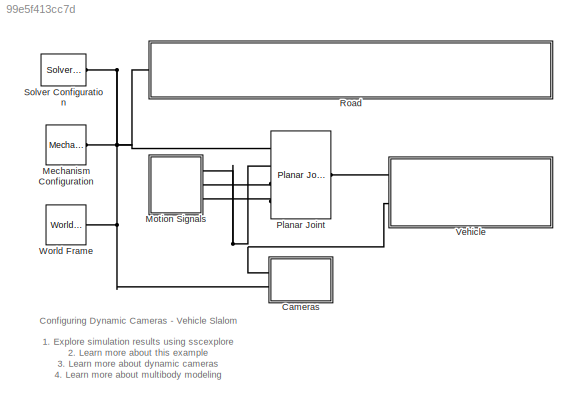
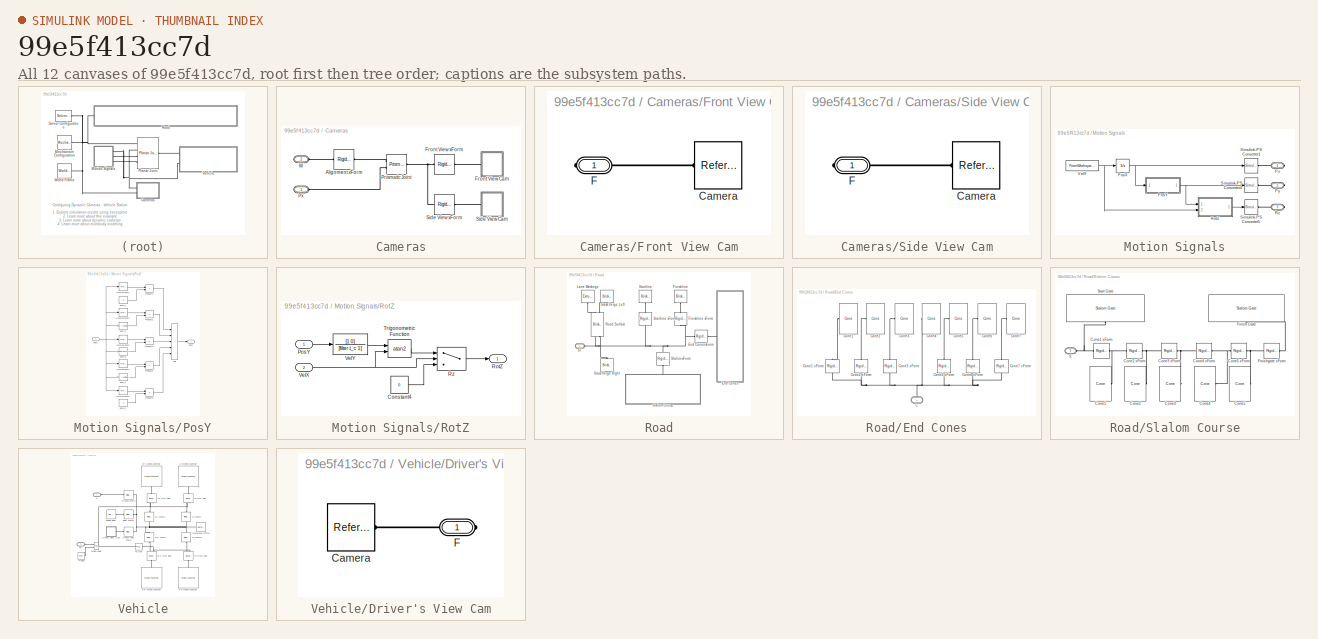
[diagram: thumbnail index - all 12 canvases of the model, root first then tree order]
MODEL slx_99e5f413cc7d
KIND model
CONFIG AbsTol = auto
CONFIG EnableMultiTasking = on
CONFIG FixedStep = auto
CONFIG MaxStep = 0.01
CONFIG MinStep = auto
CONFIG RelTol = 1e-3
CONFIG SampleTimeConstraint = Unconstrained
CONFIG Solver = VariableStepAuto
CONFIG SolverName = VariableStepAuto
CONFIG StartTime = 0.0
CONFIG StopTime = 25
WORKSPACE source: external: MATLAB File  (data not in archive)
BLOCK [SubSystem] Cameras
  Ports = [0, 0, 0, 0, 0, 2]
  RequestExecContextInheritance = off
BLOCK [Reference] Cameras/Alignment xForm  REF=sm_lib/Frames and
Transforms/Rigid
Transform
  Ports = [0, 0, 0, 0, 0, 1, 1]
  SourceBlock = sm_lib/Frames and\nTransforms/Rigid\nTransform
  SourceProductBaseCode = MS
  SourceType = Rigid\nTransform
BLOCK [SubSystem] Cameras/Front View Cam
  Ports = [0, 0, 0, 0, 0, 0, 1]
  RequestExecContextInheritance = off
BLOCK [Reference] Cameras/Front View Cam/Camera  REF=sm_lib/Frames and
Transforms/Reference
Frame
  Ports = [0, 0, 0, 0, 0, 0, 1]
  SourceBlock = sm_lib/Frames and\nTransforms/Reference\nFrame
  SourceProductBaseCode = MS
  SourceType = Reference\nFrame
BLOCK [PMIOPort] Cameras/Front View Cam/F
  Side = Right
BLOCK [Reference] Cameras/Front View xForm  REF=sm_lib/Frames and
Transforms/Rigid
Transform
  Ports = [0, 0, 0, 0, 0, 1, 1]
  SourceBlock = sm_lib/Frames and\nTransforms/Rigid\nTransform
  SourceProductBaseCode = MS
  SourceType = Rigid\nTransform
BLOCK [Reference] Cameras/Prismatic Joint  REF=sm_lib/Joints/Prismatic
Joint
  Ports = [0, 0, 0, 0, 0, 2, 1]
  SourceBlock = sm_lib/Joints/Prismatic\nJoint
  SourceProductBaseCode = MS
  SourceType = Prismatic\nJoint
BLOCK [PMIOPort] Cameras/Px
  Side = Left
BLOCK [SubSystem] Cameras/Side View Cam
  Ports = [0, 0, 0, 0, 0, 0, 1]
  RequestExecContextInheritance = off
BLOCK [Reference] Cameras/Side View Cam/Camera  REF=sm_lib/Frames and
Transforms/Reference
Frame
  Ports = [0, 0, 0, 0, 0, 0, 1]
  SourceBlock = sm_lib/Frames and\nTransforms/Reference\nFrame
  SourceProductBaseCode = MS
  SourceType = Reference\nFrame
BLOCK [PMIOPort] Cameras/Side View Cam/F
  Side = Right
BLOCK [Reference] Cameras/Side View xForm  REF=sm_lib/Frames and
Transforms/Rigid
Transform
  Ports = [0, 0, 0, 0, 0, 1, 1]
  SourceBlock = sm_lib/Frames and\nTransforms/Rigid\nTransform
  SourceProductBaseCode = MS
  SourceType = Rigid\nTransform
BLOCK [PMIOPort] Cameras/W
  Port = 2
  Side = Left
BLOCK [Reference] Mechanism Configuration  REF=sm_lib/Utilities/Mechanism
Configuration
  Ports = [0, 0, 0, 0, 0, 0, 1]
  SourceBlock = sm_lib/Utilities/Mechanism\nConfiguration
  SourceProductBaseCode = MS
  SourceType = Mechanism\nConfiguration
BLOCK [SubSystem] Motion Signals
  Ports = [0, 0, 0, 0, 0, 0, 3]
  RequestExecContextInheritance = off
BLOCK [Integrator] Motion Signals/PosX
  InitialCondition = vehicle.posX_0
  Ports = [1, 1]
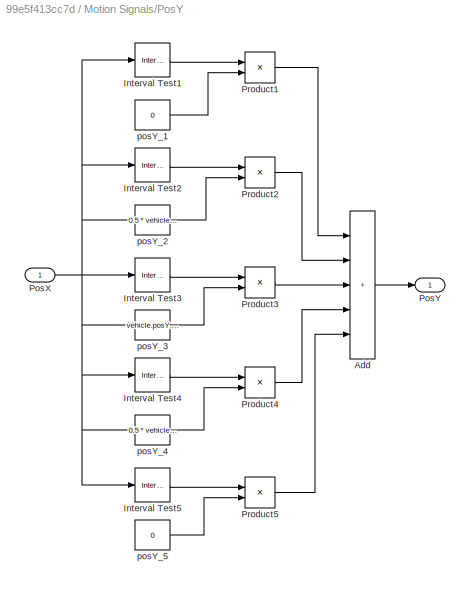
BLOCK [SubSystem] Motion Signals/PosY
  Ports = [1, 1]
  RequestExecContextInheritance = off
BLOCK [Sum] Motion Signals/PosY/Add
  IconShape = rectangular
  Inputs = +++++
  Ports = [5, 1]
BLOCK [Reference] Motion Signals/PosY/Interval Test1  REF=simulink/Logic and Bit
Operations/Interval Test
  Ports = [1, 1]
  SourceBlock = simulink/Logic and Bit\nOperations/Interval Test
  SourceProductBaseCode = SL
  SourceType = Interval Test
BLOCK [Reference] Motion Signals/PosY/Interval Test2  REF=simulink/Logic and Bit
Operations/Interval Test
  Ports = [1, 1]
  SourceBlock = simulink/Logic and Bit\nOperations/Interval Test
  SourceProductBaseCode = SL
  SourceType = Interval Test
BLOCK [Reference] Motion Signals/PosY/Interval Test3  REF=simulink/Logic and Bit
Operations/Interval Test
  Ports = [1, 1]
  SourceBlock = simulink/Logic and Bit\nOperations/Interval Test
  SourceProductBaseCode = SL
  SourceType = Interval Test
BLOCK [Reference] Motion Signals/PosY/Interval Test4  REF=simulink/Logic and Bit
Operations/Interval Test
  Ports = [1, 1]
  SourceBlock = simulink/Logic and Bit\nOperations/Interval Test
  SourceProductBaseCode = SL
  SourceType = Interval Test
BLOCK [Reference] Motion Signals/PosY/Interval Test5  REF=simulink/Logic and Bit
Operations/Interval Test
  Ports = [1, 1]
  SourceBlock = simulink/Logic and Bit\nOperations/Interval Test
  SourceProductBaseCode = SL
  SourceType = Interval Test
BLOCK [Inport] Motion Signals/PosY/PosX
BLOCK [Outport] Motion Signals/PosY/PosY
  VectorParamsAs1DForOutWhenUnconnected = off
BLOCK [Product] Motion Signals/PosY/Product1
  Ports = [2, 1]
BLOCK [Product] Motion Signals/PosY/Product2
  Ports = [2, 1]
BLOCK [Product] Motion Signals/PosY/Product3
  Ports = [2, 1]
BLOCK [Product] Motion Signals/PosY/Product4
  Ports = [2, 1]
BLOCK [Product] Motion Signals/PosY/Product5
  Ports = [2, 1]
BLOCK [Constant] Motion Signals/PosY/posY_1
  Value = 0
BLOCK [Fcn] Motion Signals/PosY/posY_2
  Expr = 0.5 * vehicle.posY.A * (1 - cos(pi / slalom.firstConeFromStartgate * (u - slalom.startgate_offset)))
BLOCK [Fcn] Motion Signals/PosY/posY_3
  Expr = vehicle.posY.A * cos(pi / slalom.coneSpacing * (u - slalom.firstCone_offset))
BLOCK [Fcn] Motion Signals/PosY/posY_4
  Expr = 0.5 * vehicle.posY.A * (1 + cos(pi / (slalom.finishgateFromEndCone) * (u - slalom.endCone_offset)))
BLOCK [Constant] Motion Signals/PosY/posY_5
  Value = 0
BLOCK [PMIOPort] Motion Signals/Px
  Side = Right
BLOCK [PMIOPort] Motion Signals/Py
  Port = 2
  Side = Right
BLOCK [SubSystem] Motion Signals/RotZ
  Ports = [2, 1]
  RequestExecContextInheritance = off
BLOCK [Constant] Motion Signals/RotZ/Constant4
  Value = 0
BLOCK [Inport] Motion Signals/RotZ/PosY
BLOCK [Outport] Motion Signals/RotZ/RotZ
  VectorParamsAs1DForOutWhenUnconnected = off
BLOCK [Switch] Motion Signals/RotZ/Rz
  Criteria = u2 > Threshold
  InputSameDT = off
  SaturateOnIntegerOverflow = off
BLOCK [Trigonometry] Motion Signals/RotZ/Trigonometric Function
  Operator = atan2
  Ports = [2, 1]
BLOCK [Inport] Motion Signals/RotZ/VelX
  Port = 2
BLOCK [TransferFcn] Motion Signals/RotZ/VelY
  Denominator = [filter.t_c 1]
  Numerator = [1 0]
BLOCK [PMIOPort] Motion Signals/Rz
  Port = 3
  Side = Right
BLOCK [Reference] Motion Signals/Simulink-PS Converter1  REF=nesl_utility/Simulink-PS
Converter
  Ports = [1, 0, 0, 0, 0, 0, 1]
  SourceBlock = nesl_utility/Simulink-PS\nConverter
  SourceProductBaseCode = SS
  SourceType = Simulink-PS\nConverter
BLOCK [Reference] Motion Signals/Simulink-PS Converter4  REF=nesl_utility/Simulink-PS
Converter
  Ports = [1, 0, 0, 0, 0, 0, 1]
  SourceBlock = nesl_utility/Simulink-PS\nConverter
  SourceProductBaseCode = SS
  SourceType = Simulink-PS\nConverter
BLOCK [Reference] Motion Signals/Simulink-PS Converter5  REF=nesl_utility/Simulink-PS
Converter
  Ports = [1, 0, 0, 0, 0, 0, 1]
  SourceBlock = nesl_utility/Simulink-PS\nConverter
  SourceProductBaseCode = SS
  SourceType = Simulink-PS\nConverter
BLOCK [FromWorkspace] Motion Signals/VelX
  OutputAfterFinalValue = Holding final value
  VariableName = vehicle.velX
BLOCK [Reference] Planar Joint  REF=sm_lib/Joints/Planar Joint
  Ports = [0, 0, 0, 0, 0, 4, 1]
  SourceBlock = sm_lib/Joints/Planar Joint
  SourceProductBaseCode = MS
  SourceType = Planar Joint
BLOCK [SubSystem] Road
  Ports = [0, 0, 0, 0, 0, 1]
  RequestExecContextInheritance = off
BLOCK [SubSystem] Road/End Cones
  Ports = [0, 0, 0, 0, 0, 1]
  RequestExecContextInheritance = off
BLOCK [Reference] Road/End Cones xForm  REF=sm_lib/Frames and
Transforms/Rigid
Transform
  Ports = [0, 0, 0, 0, 0, 1, 1]
  SourceBlock = sm_lib/Frames and\nTransforms/Rigid\nTransform
  SourceProductBaseCode = MS
  SourceType = Rigid\nTransform
BLOCK [PMIOPort] Road/End Cones/C
  NameLocation = right
  Side = Left
BLOCK [Reference] Road/End Cones/Cone1  REF=sm_vehicle_slalom_lib/Cone  (lib defined in slx_7d64bd272453)
  Ports = [0, 0, 0, 0, 0, 1]
  SourceBlock = sm_vehicle_slalom_lib/Cone
  SourceProductBaseCode = MS
  SourceType = Cone
BLOCK [Reference] Road/End Cones/Cone1 xForm  REF=sm_lib/Frames and
Transforms/Rigid
Transform
  NameLocation = right
  Ports = [0, 0, 0, 0, 0, 1, 1]
  SourceBlock = sm_lib/Frames and\nTransforms/Rigid\nTransform
  SourceProductBaseCode = MS
  SourceType = Rigid\nTransform
BLOCK [Reference] Road/End Cones/Cone2  REF=sm_vehicle_slalom_lib/Cone  (lib defined in slx_7d64bd272453)
  Ports = [0, 0, 0, 0, 0, 1]
  SourceBlock = sm_vehicle_slalom_lib/Cone
  SourceProductBaseCode = MS
  SourceType = Cone
BLOCK [Reference] Road/End Cones/Cone2 xForm  REF=sm_lib/Frames and
Transforms/Rigid
Transform
  NameLocation = right
  Ports = [0, 0, 0, 0, 0, 1, 1]
  SourceBlock = sm_lib/Frames and\nTransforms/Rigid\nTransform
  SourceProductBaseCode = MS
  SourceType = Rigid\nTransform
BLOCK [Reference] Road/End Cones/Cone3  REF=sm_vehicle_slalom_lib/Cone  (lib defined in slx_7d64bd272453)
  Ports = [0, 0, 0, 0, 0, 1]
  SourceBlock = sm_vehicle_slalom_lib/Cone
  SourceProductBaseCode = MS
  SourceType = Cone
BLOCK [Reference] Road/End Cones/Cone3 xForm  REF=sm_lib/Frames and
Transforms/Rigid
Transform
  NameLocation = right
  Ports = [0, 0, 0, 0, 0, 1, 1]
  SourceBlock = sm_lib/Frames and\nTransforms/Rigid\nTransform
  SourceProductBaseCode = MS
  SourceType = Rigid\nTransform
BLOCK [Reference] Road/End Cones/Cone4  REF=sm_vehicle_slalom_lib/Cone  (lib defined in slx_7d64bd272453)
  Ports = [0, 0, 0, 0, 0, 1]
  SourceBlock = sm_vehicle_slalom_lib/Cone
  SourceProductBaseCode = MS
  SourceType = Cone
BLOCK [Reference] Road/End Cones/Cone5  REF=sm_vehicle_slalom_lib/Cone  (lib defined in slx_7d64bd272453)
  Ports = [0, 0, 0, 0, 0, 1]
  SourceBlock = sm_vehicle_slalom_lib/Cone
  SourceProductBaseCode = MS
  SourceType = Cone
BLOCK [Reference] Road/End Cones/Cone5 xForm  REF=sm_lib/Frames and
Transforms/Rigid
Transform
  NameLocation = left
  Ports = [0, 0, 0, 0, 0, 1, 1]
  SourceBlock = sm_lib/Frames and\nTransforms/Rigid\nTransform
  SourceProductBaseCode = MS
  SourceType = Rigid\nTransform
BLOCK [Reference] Road/End Cones/Cone6  REF=sm_vehicle_slalom_lib/Cone  (lib defined in slx_7d64bd272453)
  Ports = [0, 0, 0, 0, 0, 1]
  SourceBlock = sm_vehicle_slalom_lib/Cone
  SourceProductBaseCode = MS
  SourceType = Cone
BLOCK [Reference] Road/End Cones/Cone6 xForm  REF=sm_lib/Frames and
Transforms/Rigid
Transform
  NameLocation = left
  Ports = [0, 0, 0, 0, 0, 1, 1]
  SourceBlock = sm_lib/Frames and\nTransforms/Rigid\nTransform
  SourceProductBaseCode = MS
  SourceType = Rigid\nTransform
BLOCK [Reference] Road/End Cones/Cone7  REF=sm_vehicle_slalom_lib/Cone  (lib defined in slx_7d64bd272453)
  Ports = [0, 0, 0, 0, 0, 1]
  SourceBlock = sm_vehicle_slalom_lib/Cone
  SourceProductBaseCode = MS
  SourceType = Cone
BLOCK [Reference] Road/End Cones/Cone7 xForm  REF=sm_lib/Frames and
Transforms/Rigid
Transform
  NameLocation = left
  Ports = [0, 0, 0, 0, 0, 1, 1]
  SourceBlock = sm_lib/Frames and\nTransforms/Rigid\nTransform
  SourceProductBaseCode = MS
  SourceType = Rigid\nTransform
BLOCK [Reference] Road/Finishline  REF=sm_lib/Body Elements/Brick Solid
  NameLocation = right
  Ports = [0, 0, 0, 0, 0, 0, 1]
  SourceBlock = sm_lib/Body Elements/Brick Solid
  SourceProductBaseCode = MS
  SourceType = Brick Solid
BLOCK [Reference] Road/Finishline xForm  REF=sm_lib/Frames and
Transforms/Rigid
Transform
  NameLocation = right
  Ports = [0, 0, 0, 0, 0, 1, 1]
  SourceBlock = sm_lib/Frames and\nTransforms/Rigid\nTransform
  SourceProductBaseCode = MS
  SourceType = Rigid\nTransform
BLOCK [Reference] Road/Grass Verge Left  REF=sm_lib/Body Elements/Brick Solid
  NameLocation = right
  Ports = [0, 0, 0, 0, 0, 1]
  SourceBlock = sm_lib/Body Elements/Brick Solid
  SourceProductBaseCode = MS
  SourceType = Brick Solid
BLOCK [Reference] Road/Grass Verge Right  REF=sm_lib/Body Elements/Brick Solid
  NameLocation = right
  Ports = [0, 0, 0, 0, 0, 1]
  SourceBlock = sm_lib/Body Elements/Brick Solid
  SourceProductBaseCode = MS
  SourceType = Brick Solid
BLOCK [Reference] Road/Lane Markings  REF=sm_lib/Body Elements/Extruded Solid
  NameLocation = left
  Ports = [0, 0, 0, 0, 0, 1]
  SourceBlock = sm_lib/Body Elements/Extruded Solid
  SourceProductBaseCode = MS
  SourceType = Extruded Solid
BLOCK [Reference] Road/Road Surface  REF=sm_lib/Body Elements/Brick Solid
  NameLocation = left
  Ports = [0, 0, 0, 0, 0, 2, 2]
  SourceBlock = sm_lib/Body Elements/Brick Solid
  SourceProductBaseCode = MS
  SourceType = Brick Solid
BLOCK [PMIOPort] Road/ST
  Side = Left
BLOCK [SubSystem] Road/Slalom Course
  NameLocation = left
  Ports = [0, 0, 0, 0, 0, 1]
  RequestExecContextInheritance = off
BLOCK [Reference] Road/Slalom Course/Cone1  REF=sm_vehicle_slalom_lib/Cone  (lib defined in slx_7d64bd272453)
  Ports = [0, 0, 0, 0, 0, 1]
  SourceBlock = sm_vehicle_slalom_lib/Cone
  SourceProductBaseCode = MS
  SourceType = Cone
BLOCK [Reference] Road/Slalom Course/Cone1 xForm  REF=sm_lib/Frames and
Transforms/Rigid
Transform
  Ports = [0, 0, 0, 0, 0, 1, 1]
  SourceBlock = sm_lib/Frames and\nTransforms/Rigid\nTransform
  SourceProductBaseCode = MS
  SourceType = Rigid\nTransform
BLOCK [Reference] Road/Slalom Course/Cone2  REF=sm_vehicle_slalom_lib/Cone  (lib defined in slx_7d64bd272453)
  Ports = [0, 0, 0, 0, 0, 1]
  SourceBlock = sm_vehicle_slalom_lib/Cone
  SourceProductBaseCode = MS
  SourceType = Cone
BLOCK [Reference] Road/Slalom Course/Cone2 xForm  REF=sm_lib/Frames and
Transforms/Rigid
Transform
  Ports = [0, 0, 0, 0, 0, 1, 1]
  SourceBlock = sm_lib/Frames and\nTransforms/Rigid\nTransform
  SourceProductBaseCode = MS
  SourceType = Rigid\nTransform
BLOCK [Reference] Road/Slalom Course/Cone3  REF=sm_vehicle_slalom_lib/Cone  (lib defined in slx_7d64bd272453)
  Ports = [0, 0, 0, 0, 0, 1]
  SourceBlock = sm_vehicle_slalom_lib/Cone
  SourceProductBaseCode = MS
  SourceType = Cone
BLOCK [Reference] Road/Slalom Course/Cone3 xForm  REF=sm_lib/Frames and
Transforms/Rigid
Transform
  Ports = [0, 0, 0, 0, 0, 1, 1]
  SourceBlock = sm_lib/Frames and\nTransforms/Rigid\nTransform
  SourceProductBaseCode = MS
  SourceType = Rigid\nTransform
BLOCK [Reference] Road/Slalom Course/Cone4  REF=sm_vehicle_slalom_lib/Cone  (lib defined in slx_7d64bd272453)
  Ports = [0, 0, 0, 0, 0, 1]
  SourceBlock = sm_vehicle_slalom_lib/Cone
  SourceProductBaseCode = MS
  SourceType = Cone
BLOCK [Reference] Road/Slalom Course/Cone4 xForm  REF=sm_lib/Frames and
Transforms/Rigid
Transform
  Ports = [0, 0, 0, 0, 0, 1, 1]
  SourceBlock = sm_lib/Frames and\nTransforms/Rigid\nTransform
  SourceProductBaseCode = MS
  SourceType = Rigid\nTransform
BLOCK [Reference] Road/Slalom Course/Cone5  REF=sm_vehicle_slalom_lib/Cone  (lib defined in slx_7d64bd272453)
  Ports = [0, 0, 0, 0, 0, 1]
  SourceBlock = sm_vehicle_slalom_lib/Cone
  SourceProductBaseCode = MS
  SourceType = Cone
BLOCK [Reference] Road/Slalom Course/Cone5 xForm  REF=sm_lib/Frames and
Transforms/Rigid
Transform
  Ports = [0, 0, 0, 0, 0, 1, 1]
  SourceBlock = sm_lib/Frames and\nTransforms/Rigid\nTransform
  SourceProductBaseCode = MS
  SourceType = Rigid\nTransform
BLOCK [Reference] Road/Slalom Course/Finish Gate  REF=sm_vehicle_slalom_lib/Slalom Gate  (lib defined in slx_7d64bd272453)
  NameLocation = left
  Ports = [0, 0, 0, 0, 0, 1]
  SourceBlock = sm_vehicle_slalom_lib/Slalom Gate
  SourceProductBaseCode = MS
  SourceType = Slalom Gate
BLOCK [Reference] Road/Slalom Course/Finishgate xForm  REF=sm_lib/Frames and
Transforms/Rigid
Transform
  Ports = [0, 0, 0, 0, 0, 1, 1]
  SourceBlock = sm_lib/Frames and\nTransforms/Rigid\nTransform
  SourceProductBaseCode = MS
  SourceType = Rigid\nTransform
BLOCK [PMIOPort] Road/Slalom Course/S
  Side = Left
BLOCK [Reference] Road/Slalom Course/Start Gate  REF=sm_vehicle_slalom_lib/Slalom Gate  (lib defined in slx_7d64bd272453)
  NameLocation = right
  Ports = [0, 0, 0, 0, 0, 1]
  SourceBlock = sm_vehicle_slalom_lib/Slalom Gate
  SourceProductBaseCode = MS
  SourceType = Slalom Gate
BLOCK [Reference] Road/Slalom xForm  REF=sm_lib/Frames and
Transforms/Rigid
Transform
  NameLocation = left
  Ports = [0, 0, 0, 0, 0, 1, 1]
  SourceBlock = sm_lib/Frames and\nTransforms/Rigid\nTransform
  SourceProductBaseCode = MS
  SourceType = Rigid\nTransform
BLOCK [Reference] Road/Startline  REF=sm_lib/Body Elements/Brick Solid
  NameLocation = right
  Ports = [0, 0, 0, 0, 0, 0, 1]
  SourceBlock = sm_lib/Body Elements/Brick Solid
  SourceProductBaseCode = MS
  SourceType = Brick Solid
BLOCK [Reference] Road/Startline xForm  REF=sm_lib/Frames and
Transforms/Rigid
Transform
  NameLocation = right
  Ports = [0, 0, 0, 0, 0, 1, 1]
  SourceBlock = sm_lib/Frames and\nTransforms/Rigid\nTransform
  SourceProductBaseCode = MS
  SourceType = Rigid\nTransform
BLOCK [Reference] Solver Configuration  REF=nesl_utility/Solver
Configuration
  Ports = [0, 0, 0, 0, 0, 0, 1]
  SourceBlock = nesl_utility/Solver\nConfiguration
  SourceProductBaseCode = SS
  SourceType = Solver\nConfiguration
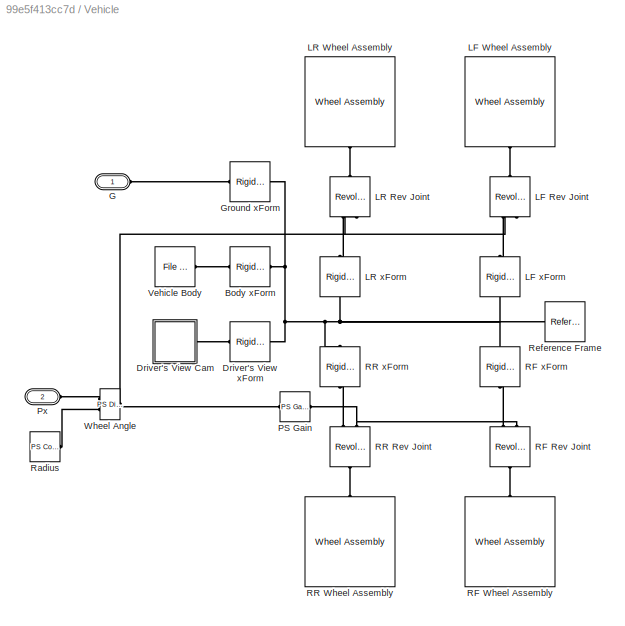
BLOCK [SubSystem] Vehicle
  Ports = [0, 0, 0, 0, 0, 2]
  RequestExecContextInheritance = off
BLOCK [Reference] Vehicle/Body xForm  REF=sm_lib/Frames and
Transforms/Rigid
Transform
  Ports = [0, 0, 0, 0, 0, 1, 1]
  SourceBlock = sm_lib/Frames and\nTransforms/Rigid\nTransform
  SourceProductBaseCode = MS
  SourceType = Rigid\nTransform
BLOCK [SubSystem] Vehicle/Driver's View Cam
  Ports = [0, 0, 0, 0, 0, 0, 1]
  RequestExecContextInheritance = off
BLOCK [Reference] Vehicle/Driver's View Cam/Camera  REF=sm_lib/Frames and
Transforms/Reference
Frame
  Ports = [0, 0, 0, 0, 0, 0, 1]
  SourceBlock = sm_lib/Frames and\nTransforms/Reference\nFrame
  SourceProductBaseCode = MS
  SourceType = Reference\nFrame
BLOCK [PMIOPort] Vehicle/Driver's View Cam/F
  Side = Right
BLOCK [Reference] Vehicle/Driver's View xForm  REF=sm_lib/Frames and
Transforms/Rigid
Transform
  Ports = [0, 0, 0, 0, 0, 1, 1]
  SourceBlock = sm_lib/Frames and\nTransforms/Rigid\nTransform
  SourceProductBaseCode = MS
  SourceType = Rigid\nTransform
BLOCK [PMIOPort] Vehicle/G
  Side = Left
BLOCK [Reference] Vehicle/Ground xForm  REF=sm_lib/Frames and
Transforms/Rigid
Transform
  Ports = [0, 0, 0, 0, 0, 1, 1]
  SourceBlock = sm_lib/Frames and\nTransforms/Rigid\nTransform
  SourceProductBaseCode = MS
  SourceType = Rigid\nTransform
BLOCK [Reference] Vehicle/LF Rev Joint  REF=sm_lib/Joints/Revolute Joint
  NameLocation = right
  Ports = [0, 0, 0, 0, 0, 2, 1]
  SourceBlock = sm_lib/Joints/Revolute Joint
  SourceProductBaseCode = MS
  SourceType = Revolute Joint
BLOCK [Reference] Vehicle/LF Wheel Assembly  REF=sm_vehicle_slalom_lib/Wheel Assembly  (lib defined in slx_7d64bd272453)
  NameLocation = left
  Ports = [0, 0, 0, 0, 0, 1]
  SourceBlock = sm_vehicle_slalom_lib/Wheel Assembly
  SourceProductBaseCode = MS
  SourceType = Wheel Assembly
BLOCK [Reference] Vehicle/LF xForm  REF=sm_lib/Frames and
Transforms/Rigid
Transform
  NameLocation = right
  Ports = [0, 0, 0, 0, 0, 1, 1]
  SourceBlock = sm_lib/Frames and\nTransforms/Rigid\nTransform
  SourceProductBaseCode = MS
  SourceType = Rigid\nTransform
BLOCK [Reference] Vehicle/LR Rev Joint  REF=sm_lib/Joints/Revolute Joint
  NameLocation = right
  Ports = [0, 0, 0, 0, 0, 2, 1]
  SourceBlock = sm_lib/Joints/Revolute Joint
  SourceProductBaseCode = MS
  SourceType = Revolute Joint
BLOCK [Reference] Vehicle/LR Wheel Assembly  REF=sm_vehicle_slalom_lib/Wheel Assembly  (lib defined in slx_7d64bd272453)
  NameLocation = left
  Ports = [0, 0, 0, 0, 0, 1]
  SourceBlock = sm_vehicle_slalom_lib/Wheel Assembly
  SourceProductBaseCode = MS
  SourceType = Wheel Assembly
BLOCK [Reference] Vehicle/LR xForm  REF=sm_lib/Frames and
Transforms/Rigid
Transform
  NameLocation = right
  Ports = [0, 0, 0, 0, 0, 1, 1]
  SourceBlock = sm_lib/Frames and\nTransforms/Rigid\nTransform
  SourceProductBaseCode = MS
  SourceType = Rigid\nTransform
BLOCK [Reference] Vehicle/PS Gain  REF=fl_ps_legacy_lib/Legacy Physical
Signals/Functions/PS Gain
  Ports = [0, 0, 0, 0, 0, 1, 1]
  SourceBlock = fl_ps_legacy_lib/Legacy Physical\nSignals/Functions/PS Gain
  SourceProductBaseCode = SS
  SourceType = PS Gain
BLOCK [PMIOPort] Vehicle/Px
  Port = 2
  Side = Left
BLOCK [Reference] Vehicle/RF Rev Joint  REF=sm_lib/Joints/Revolute Joint
  NameLocation = right
  Ports = [0, 0, 0, 0, 0, 2, 1]
  SourceBlock = sm_lib/Joints/Revolute Joint
  SourceProductBaseCode = MS
  SourceType = Revolute Joint
BLOCK [Reference] Vehicle/RF Wheel Assembly  REF=sm_vehicle_slalom_lib/Wheel Assembly  (lib defined in slx_7d64bd272453)
  NameLocation = left
  Ports = [0, 0, 0, 0, 0, 1]
  SourceBlock = sm_vehicle_slalom_lib/Wheel Assembly
  SourceProductBaseCode = MS
  SourceType = Wheel Assembly
BLOCK [Reference] Vehicle/RF xForm  REF=sm_lib/Frames and
Transforms/Rigid
Transform
  NameLocation = right
  Ports = [0, 0, 0, 0, 0, 1, 1]
  SourceBlock = sm_lib/Frames and\nTransforms/Rigid\nTransform
  SourceProductBaseCode = MS
  SourceType = Rigid\nTransform
BLOCK [Reference] Vehicle/RR Rev Joint  REF=sm_lib/Joints/Revolute Joint
  NameLocation = right
  Ports = [0, 0, 0, 0, 0, 2, 1]
  SourceBlock = sm_lib/Joints/Revolute Joint
  SourceProductBaseCode = MS
  SourceType = Revolute Joint
BLOCK [Reference] Vehicle/RR Wheel Assembly  REF=sm_vehicle_slalom_lib/Wheel Assembly  (lib defined in slx_7d64bd272453)
  NameLocation = left
  Ports = [0, 0, 0, 0, 0, 1]
  SourceBlock = sm_vehicle_slalom_lib/Wheel Assembly
  SourceProductBaseCode = MS
  SourceType = Wheel Assembly
BLOCK [Reference] Vehicle/RR xForm  REF=sm_lib/Frames and
Transforms/Rigid
Transform
  NameLocation = right
  Ports = [0, 0, 0, 0, 0, 1, 1]
  SourceBlock = sm_lib/Frames and\nTransforms/Rigid\nTransform
  SourceProductBaseCode = MS
  SourceType = Rigid\nTransform
BLOCK [Reference] Vehicle/Radius  REF=fl_lib/Physical Signals/Sources/PS Constant
  Ports = [0, 0, 0, 0, 0, 0, 1]
  SourceBlock = fl_lib/Physical Signals/Sources/PS Constant
  SourceProductBaseCode = SS
  SourceType = PS Constant
BLOCK [Reference] Vehicle/Reference Frame  REF=sm_lib/Frames and
Transforms/Reference
Frame
  NameLocation = top
  Ports = [0, 0, 0, 0, 0, 0, 1]
  SourceBlock = sm_lib/Frames and\nTransforms/Reference\nFrame
  SourceProductBaseCode = MS
  SourceType = Reference\nFrame
BLOCK [Reference] Vehicle/Vehicle Body  REF=sm_lib/Body Elements/File Solid
  Ports = [0, 0, 0, 0, 0, 0, 1]
  SourceBlock = sm_lib/Body Elements/File Solid
  SourceProductBaseCode = MS
  SourceType = File Solid
BLOCK [Reference] Vehicle/Wheel Angle  REF=fl_ps_legacy_lib/Legacy Physical
Signals/Functions/PS Divide
  Ports = [0, 0, 0, 0, 0, 2, 1]
  SourceBlock = fl_ps_legacy_lib/Legacy Physical\nSignals/Functions/PS Divide
  SourceProductBaseCode = SS
  SourceType = PS Divide
BLOCK [Reference] World Frame  REF=sm_lib/Frames and
Transforms/World Frame
  Ports = [0, 0, 0, 0, 0, 0, 1]
  SourceBlock = sm_lib/Frames and\nTransforms/World Frame
  SourceProductBaseCode = MS
  SourceType = World Frame
ANNOTATION (root): 1. Explore simulation results using sscexplore 2. Learn more about this example 3. Learn more about dynamic cameras 4. Learn more about multibody modeling
ANNOTATION (root): Configuring Dynamic Cameras - Vehicle Slalom
NET Motion Signals/PosX:1 -> Motion Signals/PosY:1, Motion Signals/Simulink-PS Converter1:1
LINE Motion Signals/PosY/Add:1 -> Motion Signals/PosY/PosY:1
LINE Motion Signals/PosY/Interval Test1:1 -> Motion Signals/PosY/Product1:1
LINE Motion Signals/PosY/Interval Test2:1 -> Motion Signals/PosY/Product2:1
LINE Motion Signals/PosY/Interval Test3:1 -> Motion Signals/PosY/Product3:1
LINE Motion Signals/PosY/Interval Test4:1 -> Motion Signals/PosY/Product4:1
LINE Motion Signals/PosY/Interval Test5:1 -> Motion Signals/PosY/Product5:1
NET Motion Signals/PosY/PosX:1 -> Motion Signals/PosY/Interval Test1:1, Motion Signals/PosY/Interval Test2:1, Motion Signals/PosY/Interval Test3:1, Motion Signals/PosY/Interval Test4:1, Motion Signals/PosY/Interval Test5:1, Motion Signals/PosY/posY_2:1, Motion Signals/PosY/posY_3:1, Motion Signals/PosY/posY_4:1
LINE Motion Signals/PosY/Product1:1 -> Motion Signals/PosY/Add:1
LINE Motion Signals/PosY/Product2:1 -> Motion Signals/PosY/Add:2
LINE Motion Signals/PosY/Product3:1 -> Motion Signals/PosY/Add:3
LINE Motion Signals/PosY/Product4:1 -> Motion Signals/PosY/Add:4
LINE Motion Signals/PosY/Product5:1 -> Motion Signals/PosY/Add:5
LINE Motion Signals/PosY/posY_1:1 -> Motion Signals/PosY/Product1:2
LINE Motion Signals/PosY/posY_2:1 -> Motion Signals/PosY/Product2:2
LINE Motion Signals/PosY/posY_3:1 -> Motion Signals/PosY/Product3:2
LINE Motion Signals/PosY/posY_4:1 -> Motion Signals/PosY/Product4:2
LINE Motion Signals/PosY/posY_5:1 -> Motion Signals/PosY/Product5:2
NET Motion Signals/PosY:1 -> Motion Signals/RotZ:1, Motion Signals/Simulink-PS Converter4:1
LINE Motion Signals/RotZ/Constant4:1 -> Motion Signals/RotZ/Rz:3
LINE Motion Signals/RotZ/PosY:1 -> Motion Signals/RotZ/VelY:1
LINE Motion Signals/RotZ/Rz:1 -> Motion Signals/RotZ/RotZ:1
LINE Motion Signals/RotZ/Trigonometric Function:1 -> Motion Signals/RotZ/Rz:1
NET Motion Signals/RotZ/VelX:1 -> Motion Signals/RotZ/Rz:2, Motion Signals/RotZ/Trigonometric Function:2
LINE Motion Signals/RotZ/VelY:1 -> Motion Signals/RotZ/Trigonometric Function:1
LINE Motion Signals/RotZ:1 -> Motion Signals/Simulink-PS Converter5:1
NET Motion Signals/VelX:1 -> Motion Signals/PosX:1, Motion Signals/RotZ:2
PLINE Cameras/Alignment xForm:LConn1 -- Cameras/W:RConn1
PLINE Cameras/Alignment xForm:RConn1 -- Cameras/Prismatic Joint:LConn1
PLINE Cameras/Front View Cam/Camera:RConn1 -- Cameras/Front View Cam/F:RConn1
PLINE Cameras/Front View Cam:RConn1 -- Cameras/Front View xForm:RConn1
PNET net1: Cameras/Front View xForm:LConn1 -- Cameras/Prismatic Joint:RConn1 -- Cameras/Side View xForm:LConn1
PLINE Cameras/Prismatic Joint:LConn2 -- Cameras/Px:RConn1
PLINE Cameras/Side View Cam/Camera:RConn1 -- Cameras/Side View Cam/F:RConn1
PLINE Cameras/Side View Cam:RConn1 -- Cameras/Side View xForm:RConn1
PNET net2: Cameras:LConn1 -- Motion Signals:RConn1 -- Planar Joint:LConn2 -- Vehicle:LConn2
PNET net3: Cameras:LConn2 -- Mechanism Configuration:RConn1 -- Planar Joint:LConn1 -- Road:LConn1 -- Solver Configuration:RConn1 -- World Frame:RConn1
PLINE Motion Signals/Px:RConn1 -- Motion Signals/Simulink-PS Converter1:RConn1
PLINE Motion Signals/Py:RConn1 -- Motion Signals/Simulink-PS Converter4:RConn1
PLINE Motion Signals/Rz:RConn1 -- Motion Signals/Simulink-PS Converter5:RConn1
PLINE Motion Signals:RConn2 -- Planar Joint:LConn3
PLINE Motion Signals:RConn3 -- Planar Joint:LConn4
PLINE Planar Joint:RConn1 -- Vehicle:LConn1
PNET net4: Road/End Cones xForm:LConn1 -- Road/Finishline xForm:LConn1 -- Road/Road Surface:LConn1 -- Road/ST:RConn1 -- Road/Slalom xForm:LConn1 -- Road/Startline xForm:LConn1
PLINE Road/End Cones xForm:RConn1 -- Road/End Cones:LConn1
PNET net5: Road/End Cones/C:RConn1 -- Road/End Cones/Cone1 xForm:LConn1 -- Road/End Cones/Cone2 xForm:LConn1 -- Road/End Cones/Cone3 xForm:LConn1 -- Road/End Cones/Cone4:LConn1 -- Road/End Cones/Cone5 xForm:LConn1 -- Road/End Cones/Cone6 xForm:LConn1 -- Road/End Cones/Cone7 xForm:LConn1
PLINE Road/End Cones/Cone1 xForm:RConn1 -- Road/End Cones/Cone1:LConn1
PLINE Road/End Cones/Cone2 xForm:RConn1 -- Road/End Cones/Cone2:LConn1
PLINE Road/End Cones/Cone3 xForm:RConn1 -- Road/End Cones/Cone3:LConn1
PLINE Road/End Cones/Cone5 xForm:RConn1 -- Road/End Cones/Cone5:LConn1
PLINE Road/End Cones/Cone6 xForm:RConn1 -- Road/End Cones/Cone6:LConn1
PLINE Road/End Cones/Cone7 xForm:RConn1 -- Road/End Cones/Cone7:LConn1
PLINE Road/Finishline xForm:RConn1 -- Road/Finishline:RConn1
PLINE Road/Grass Verge Left:LConn1 -- Road/Road Surface:RConn2
PLINE Road/Grass Verge Right:LConn1 -- Road/Road Surface:LConn2
PLINE Road/Lane Markings:LConn1 -- Road/Road Surface:RConn1
PNET net6: Road/Slalom Course/Cone1 xForm:LConn1 -- Road/Slalom Course/S:RConn1 -- Road/Slalom Course/Start Gate:LConn1
PNET net7: Road/Slalom Course/Cone1 xForm:RConn1 -- Road/Slalom Course/Cone1:LConn1 -- Road/Slalom Course/Cone2 xForm:LConn1
PNET net8: Road/Slalom Course/Cone2 xForm:RConn1 -- Road/Slalom Course/Cone2:LConn1 -- Road/Slalom Course/Cone3 xForm:LConn1
PNET net9: Road/Slalom Course/Cone3 xForm:RConn1 -- Road/Slalom Course/Cone3:LConn1 -- Road/Slalom Course/Cone4 xForm:LConn1
PNET net10: Road/Slalom Course/Cone4 xForm:RConn1 -- Road/Slalom Course/Cone4:LConn1 -- Road/Slalom Course/Cone5 xForm:LConn1
PNET net11: Road/Slalom Course/Cone5 xForm:RConn1 -- Road/Slalom Course/Cone5:LConn1 -- Road/Slalom Course/Finishgate xForm:LConn1
PLINE Road/Slalom Course/Finish Gate:LConn1 -- Road/Slalom Course/Finishgate xForm:RConn1
PLINE Road/Slalom Course:LConn1 -- Road/Slalom xForm:RConn1
PLINE Road/Startline xForm:RConn1 -- Road/Startline:RConn1
PNET net12: Vehicle/Body xForm:LConn1 -- Vehicle/Driver's View xForm:LConn1 -- Vehicle/Ground xForm:LConn1 -- Vehicle/LF xForm:LConn1 -- Vehicle/LR xForm:LConn1 -- Vehicle/RF xForm:LConn1 -- Vehicle/RR xForm:LConn1 -- Vehicle/Reference Frame:RConn1
PLINE Vehicle/Body xForm:RConn1 -- Vehicle/Vehicle Body:RConn1
PLINE Vehicle/Driver's View Cam/Camera:RConn1 -- Vehicle/Driver's View Cam/F:RConn1
PLINE Vehicle/Driver's View Cam:RConn1 -- Vehicle/Driver's View xForm:RConn1
PLINE Vehicle/G:RConn1 -- Vehicle/Ground xForm:RConn1
PLINE Vehicle/LF Rev Joint:LConn1 -- Vehicle/LF xForm:RConn1
PNET net13: Vehicle/LF Rev Joint:LConn2 -- Vehicle/LR Rev Joint:LConn2 -- Vehicle/PS Gain:LConn1 -- Vehicle/Wheel Angle:RConn1
PLINE Vehicle/LF Rev Joint:RConn1 -- Vehicle/LF Wheel Assembly:LConn1
PLINE Vehicle/LR Rev Joint:LConn1 -- Vehicle/LR xForm:RConn1
PLINE Vehicle/LR Rev Joint:RConn1 -- Vehicle/LR Wheel Assembly:LConn1
PNET net14: Vehicle/PS Gain:RConn1 -- Vehicle/RF Rev Joint:LConn2 -- Vehicle/RR Rev Joint:LConn2
PLINE Vehicle/Px:RConn1 -- Vehicle/Wheel Angle:LConn1
PLINE Vehicle/RF Rev Joint:LConn1 -- Vehicle/RF xForm:RConn1
PLINE Vehicle/RF Rev Joint:RConn1 -- Vehicle/RF Wheel Assembly:LConn1
PLINE Vehicle/RR Rev Joint:LConn1 -- Vehicle/RR xForm:RConn1
PLINE Vehicle/RR Rev Joint:RConn1 -- Vehicle/RR Wheel Assembly:LConn1
PLINE Vehicle/Radius:RConn1 -- Vehicle/Wheel Angle:LConn2
note: NET lines group one-source signal fan-out (src -> all destinations, sorted); 1:1 wires keep LINE; PNET lines group multi-terminal physical nets as a canonical sorted terminal list (undirected conserving connections); 2-terminal nets keep the pairwise PLINE form
